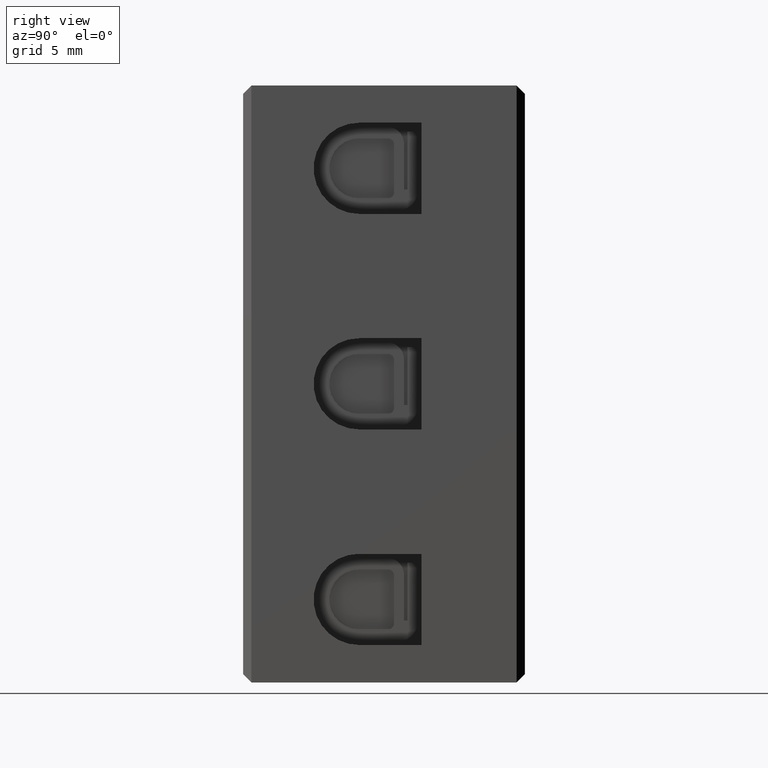
[diagram: clean part render]
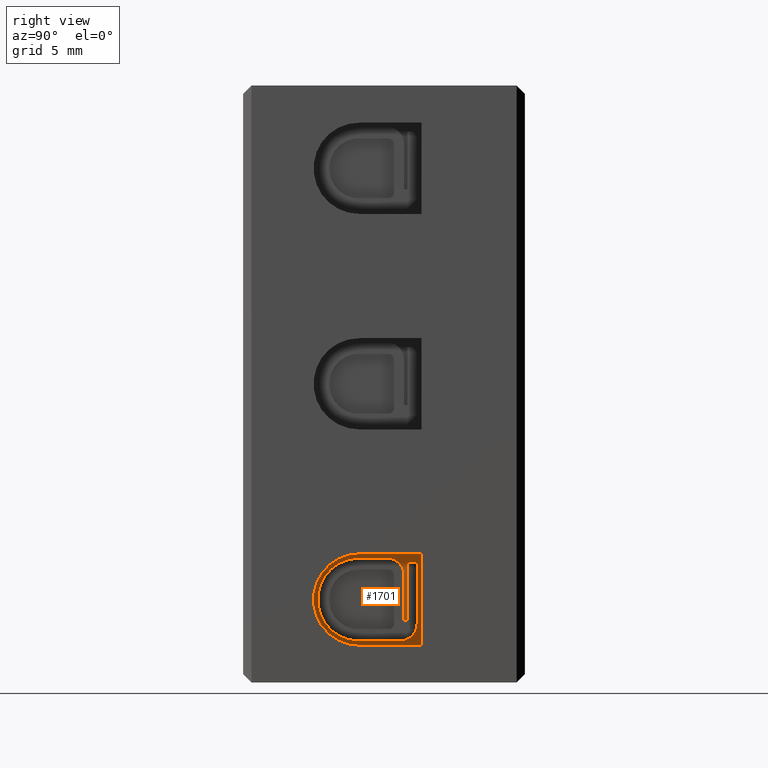
[diagram: same view with one face highlighted and labeled with its STEP entity id]
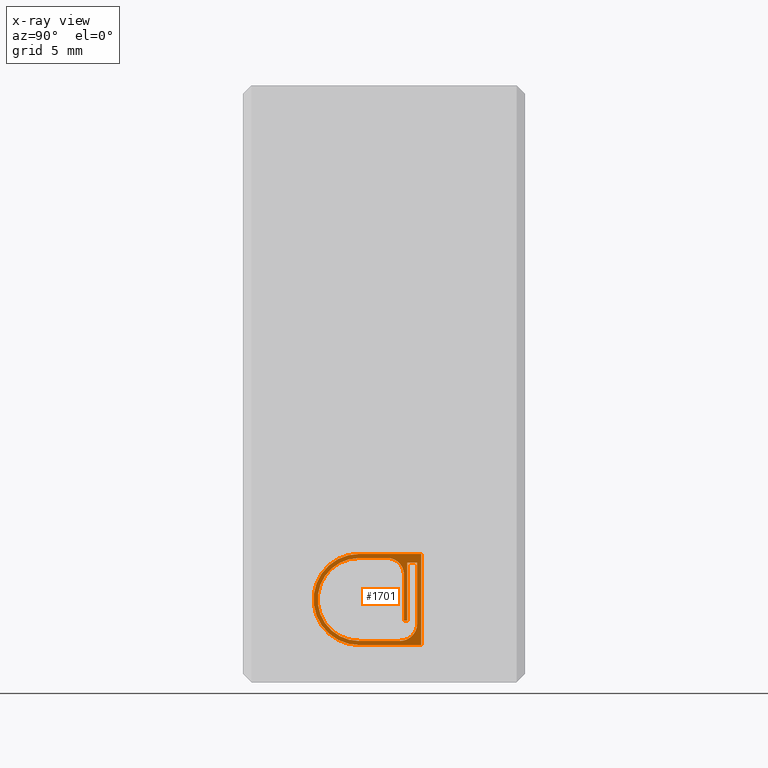
[diagram: x-ray of the same camera — body ghosted, the highlighted face saturated]
A machine part, right view. The second image highlights one B-rep face of the part: STEP entity #1701.
The next image is the same camera in x-ray: the body ghosted, the highlighted face saturated — about 0% of this face is hidden behind the body in this view.
In plain terms, the highlighted planar face has unit normal (1, -0, 0).
Its self-contained STEP definition (entity closure, byte-faithful):
#294 = LINE ( 'NONE', #297, #5585 ) ;
#297 = CARTESIAN_POINT ( 'NONE',  ( 6493.007784387873500, 6.999999999999998200, -33.75345117182175900 ) ) ;
#299 = LINE ( 'NONE', #320, #5584 ) ;
#300 = DIRECTION ( 'NONE',  ( 1.000000000000000000, -0.0000000000000000000, 0.0000000000000000000 ) ) ;
#308 = CARTESIAN_POINT ( 'NONE',  ( 6493.007784387873500, 9.449999999999784400, -32.45342649165758100 ) ) ;
#309 = DIRECTION ( 'NONE',  ( 0.0000000000000000000, 0.0000000000000000000, -1.000000000000000000 ) ) ;
#312 = DIRECTION ( 'NONE',  ( 1.095841156870758400E-027, 1.000000000000000000, 1.850530133063209700E-015 ) ) ;
#320 = CARTESIAN_POINT ( 'NONE',  ( 6493.007784387873500, 7.000000000000000000, -28.25280909086431400 ) ) ;
#324 = DIRECTION ( 'NONE',  ( -5.479205784353794500E-028, -1.000000000000000000, -9.252650665316052400E-016 ) ) ;
#351 = LINE ( 'NONE', #362, #5643 ) ;
#352 = DIRECTION ( 'NONE',  ( 0.0000000000000000000, 0.0000000000000000000, 1.000000000000000000 ) ) ;
#358 = CARTESIAN_POINT ( 'NONE',  ( 6493.007784387873500, 9.899999999999909800, -49.58692875665487800 ) ) ;
#361 = LINE ( 'NONE', #358, #5619 ) ;
#362 = CARTESIAN_POINT ( 'NONE',  ( 6493.007784387873500, 10.49999999999990900, -49.58692875665487800 ) ) ;
#366 = DIRECTION ( 'NONE',  ( 0.0000000000000000000, 0.0000000000000000000, -1.000000000000000000 ) ) ;
#372 = LINE ( 'NONE', #378, #5652 ) ;
#374 = CARTESIAN_POINT ( 'NONE',  ( 6493.007784387873500, 10.74967895952128000, -33.75345117183628900 ) ) ;
#378 = CARTESIAN_POINT ( 'NONE',  ( 6493.007784387873500, 11.47889287136609600, -32.27842649165692300 ) ) ;
#380 = DIRECTION ( 'NONE',  ( 0.0000000000000000000, -1.000000000000000000, -9.796085511400135400E-014 ) ) ;
#381 = DIRECTION ( 'NONE',  ( 0.0000000000000000000, -0.0000000000000000000, 1.000000000000000000 ) ) ;
#386 = LINE ( 'NONE', #374, #5664 ) ;
#388 = CARTESIAN_POINT ( 'NONE',  ( 6493.007784387873500, 11.47889287136403000, -28.50342649165640200 ) ) ;
#390 = DIRECTION ( 'NONE',  ( 0.0000000000000000000, 0.0000000000000000000, -1.000000000000000000 ) ) ;
#396 = DIRECTION ( 'NONE',  ( 0.0000000000000000000, -1.000000000000000000, 0.0000000000000000000 ) ) ;
#402 = CARTESIAN_POINT ( 'NONE',  ( 6493.007784387873500, 8.699999999999874900, -29.50342649165667200 ) ) ;
#409 = LINE ( 'NONE', #388, #5644 ) ;
#410 = DIRECTION ( 'NONE',  ( 1.000000000000000000, -0.0000000000000000000, 0.0000000000000000000 ) ) ;
#417 = LINE ( 'NONE', #428, #5640 ) ;
#418 = CARTESIAN_POINT ( 'NONE',  ( 6493.007784387873500, 7.000000000000168800, -31.00342649165741400 ) ) ;
#426 = DIRECTION ( 'NONE',  ( 0.0000000000000000000, 0.0000000000000000000, -1.000000000000000000 ) ) ;
#428 = CARTESIAN_POINT ( 'NONE',  ( 6493.007784387873500, 11.47889287136609600, -28.77842649165691900 ) ) ;
#432 = DIRECTION ( 'NONE',  ( 1.000000000000000000, -0.0000000000000000000, 0.0000000000000000000 ) ) ;
#437 = DIRECTION ( 'NONE',  ( 0.0000000000000000000, -1.000000000000000000, 0.0000000000000000000 ) ) ;
#465 = LINE ( 'NONE', #485, #5648 ) ;
#473 = DIRECTION ( 'NONE',  ( 0.0000000000000000000, 0.0000000000000000000, 1.000000000000000000 ) ) ;
#482 = DIRECTION ( 'NONE',  ( 1.000000000000000000, -0.0000000000000000000, -5.921768780153806200E-013 ) ) ;
#485 = CARTESIAN_POINT ( 'NONE',  ( 6493.007784387873500, 9.699999999999874900, -49.58692875665487800 ) ) ;
#486 = DIRECTION ( 'NONE',  ( 6.458725411528886600E-013, 0.0000000000000000000, 1.000000000000000000 ) ) ;
#496 = CARTESIAN_POINT ( 'NONE',  ( 6493.007784387871700, 6.999999999999999100, -31.00313013134303500 ) ) ;
#1207 = EDGE_CURVE ( 'NONE', #6653, #6641, #5508, .T. ) ;
#1265 = EDGE_CURVE ( 'NONE', #6671, #6662, #299, .T. ) ;
#1267 = EDGE_CURVE ( 'NONE', #6635, #2371, #294, .T. ) ;
#1270 = EDGE_CURVE ( 'NONE', #6641, #6648, #5570, .T. ) ;
#1277 = EDGE_CURVE ( 'NONE', #6648, #6652, #351, .T. ) ;
#1283 = EDGE_CURVE ( 'NONE', #6675, #6645, #361, .T. ) ;
#1294 = EDGE_CURVE ( 'NONE', #6645, #6681, #372, .T. ) ;
#1295 = EDGE_CURVE ( 'NONE', #2371, #6671, #386, .T. ) ;
#1296 = EDGE_CURVE ( 'NONE', #6659, #6678, #5635, .T. ) ;
#1297 = EDGE_CURVE ( 'NONE', #6678, #6683, #409, .T. ) ;
#1312 = EDGE_CURVE ( 'NONE', #6683, #6653, #5618, .T. ) ;
#1314 = EDGE_CURVE ( 'NONE', #6652, #6675, #417, .T. ) ;
#1317 = EDGE_CURVE ( 'NONE', #6681, #6659, #465, .T. ) ;
#1320 = EDGE_CURVE ( 'NONE', #6662, #6635, #5675, .T. ) ;
#1701 = ADVANCED_FACE ( 'NONE', ( #3786, #3840 ), #3815, .T. ) ;
#2371 = VERTEX_POINT ( 'NONE', #8190 ) ;
#2570 = EDGE_LOOP ( 'NONE', ( #2883, #2889, #2866, #2872 ) ) ;
#2649 = EDGE_LOOP ( 'NONE', ( #2885, #2911, #2905, #2865, #2899, #2886, #2918, #2862, #2903, #2897 ) ) ;
#2862 = ORIENTED_EDGE ( 'NONE', *, *, #1294, .F. ) ;
#2865 = ORIENTED_EDGE ( 'NONE', *, *, #1312, .F. ) ;
#2866 = ORIENTED_EDGE ( 'NONE', *, *, #1295, .T. ) ;
#2872 = ORIENTED_EDGE ( 'NONE', *, *, #1265, .T. ) ;
#2883 = ORIENTED_EDGE ( 'NONE', *, *, #1320, .T. ) ;
#2885 = ORIENTED_EDGE ( 'NONE', *, *, #1277, .F. ) ;
#2886 = ORIENTED_EDGE ( 'NONE', *, *, #1296, .F. ) ;
#2889 = ORIENTED_EDGE ( 'NONE', *, *, #1267, .T. ) ;
#2897 = ORIENTED_EDGE ( 'NONE', *, *, #1314, .F. ) ;
#2899 = ORIENTED_EDGE ( 'NONE', *, *, #1297, .F. ) ;
#2903 = ORIENTED_EDGE ( 'NONE', *, *, #1283, .F. ) ;
#2905 = ORIENTED_EDGE ( 'NONE', *, *, #1207, .F. ) ;
#2911 = ORIENTED_EDGE ( 'NONE', *, *, #1270, .F. ) ;
#2918 = ORIENTED_EDGE ( 'NONE', *, *, #1317, .F. ) ;
#3786 = FACE_BOUND ( 'NONE', #2649, .T. ) ;
#3788 = DIRECTION ( 'NONE',  ( 0.0000000000000000000, 0.0000000000000000000, -1.000000000000000000 ) ) ;
#3807 = CARTESIAN_POINT ( 'NONE',  ( 6493.007784387873500, 11.47889287136609600, -49.58692875665487800 ) ) ;
#3815 = PLANE ( 'NONE',  #4326 ) ;
#3839 = DIRECTION ( 'NONE',  ( 1.000000000000000000, -0.0000000000000000000, 0.0000000000000000000 ) ) ;
#3840 = FACE_OUTER_BOUND ( 'NONE', #2570, .T. ) ;
#4326 = AXIS2_PLACEMENT_3D ( 'NONE', #3807, #3839, #3788 ) ;
#5485 = CARTESIAN_POINT ( 'NONE',  ( 6493.007784387873500, 11.47889287136318100, -33.50342649165734300 ) ) ;
#5508 = LINE ( 'NONE', #5485, #6226 ) ;
#5512 = DIRECTION ( 'NONE',  ( 0.0000000000000000000, 1.000000000000000000, 1.812609019796458000E-013 ) ) ;
#5570 = CIRCLE ( 'NONE', #5574, 1.050000000000127300 ) ;
#5574 = AXIS2_PLACEMENT_3D ( 'NONE', #308, #300, #309 ) ;
#5584 = VECTOR ( 'NONE', #324, 1000.000000000000000 ) ;
#5585 = VECTOR ( 'NONE', #312, 1000.000000000000000 ) ;
#5617 = AXIS2_PLACEMENT_3D ( 'NONE', #402, #410, #390 ) ;
#5618 = CIRCLE ( 'NONE', #5637, 2.500000000000658100 ) ;
#5619 = VECTOR ( 'NONE', #366, 1000.000000000000000 ) ;
#5635 = CIRCLE ( 'NONE', #5617, 1.000000000000000900 ) ;
#5637 = AXIS2_PLACEMENT_3D ( 'NONE', #418, #432, #426 ) ;
#5640 = VECTOR ( 'NONE', #437, 1000.000000000000000 ) ;
#5643 = VECTOR ( 'NONE', #352, 1000.000000000000000 ) ;
#5644 = VECTOR ( 'NONE', #380, 1000.000000000000000 ) ;
#5648 = VECTOR ( 'NONE', #473, 1000.000000000000000 ) ;
#5652 = VECTOR ( 'NONE', #396, 1000.000000000000000 ) ;
#5664 = VECTOR ( 'NONE', #381, 1000.000000000000000 ) ;
#5675 = CIRCLE ( 'NONE', #5694, 2.750321040478724400 ) ;
#5694 = AXIS2_PLACEMENT_3D ( 'NONE', #496, #482, #486 ) ;
#6226 = VECTOR ( 'NONE', #5512, 1000.000000000000000 ) ;
#6635 = VERTEX_POINT ( 'NONE', #7294 ) ;
#6641 = VERTEX_POINT ( 'NONE', #7302 ) ;
#6645 = VERTEX_POINT ( 'NONE', #7275 ) ;
#6648 = VERTEX_POINT ( 'NONE', #7307 ) ;
#6652 = VERTEX_POINT ( 'NONE', #7260 ) ;
#6653 = VERTEX_POINT ( 'NONE', #7277 ) ;
#6659 = VERTEX_POINT ( 'NONE', #7343 ) ;
#6662 = VERTEX_POINT ( 'NONE', #7334 ) ;
#6671 = VERTEX_POINT ( 'NONE', #7319 ) ;
#6675 = VERTEX_POINT ( 'NONE', #7345 ) ;
#6678 = VERTEX_POINT ( 'NONE', #7337 ) ;
#6681 = VERTEX_POINT ( 'NONE', #7323 ) ;
#6683 = VERTEX_POINT ( 'NONE', #7329 ) ;
#7260 = CARTESIAN_POINT ( 'NONE',  ( 6493.007784387873500, 10.49999999999990900, -28.77842649165691900 ) ) ;
#7275 = CARTESIAN_POINT ( 'NONE',  ( 6493.007784387873500, 9.899999999999909800, -32.27842649165722100 ) ) ;
#7277 = CARTESIAN_POINT ( 'NONE',  ( 6493.007784387873500, 7.000000000000168800, -33.50342649165806800 ) ) ;
#7294 = CARTESIAN_POINT ( 'NONE',  ( 6493.007784387871700, 7.000000000000000900, -33.75345117182175900 ) ) ;
#7302 = CARTESIAN_POINT ( 'NONE',  ( 6493.007784387873500, 9.449999999999784400, -33.50342649165771300 ) ) ;
#7307 = CARTESIAN_POINT ( 'NONE',  ( 6493.007784387873500, 10.49999999999991100, -32.45342649165240800 ) ) ;
#7319 = CARTESIAN_POINT ( 'NONE',  ( 6493.007784387873500, 10.74967895952128000, -28.25280909086431100 ) ) ;
#7323 = CARTESIAN_POINT ( 'NONE',  ( 6493.007784387873500, 9.699999999999874900, -32.27842649165692300 ) ) ;
#7329 = CARTESIAN_POINT ( 'NONE',  ( 6493.007784387873500, 7.000000000000168800, -28.50342649165683900 ) ) ;
#7334 = CARTESIAN_POINT ( 'NONE',  ( 6493.007784387873500, 6.999999999999997300, -28.25280909086431400 ) ) ;
#7337 = CARTESIAN_POINT ( 'NONE',  ( 6493.007784387873500, 8.699999999999874900, -28.50342649165667200 ) ) ;
#7343 = CARTESIAN_POINT ( 'NONE',  ( 6493.007784387873500, 9.699999999999874900, -29.50342649164956700 ) ) ;
#7345 = CARTESIAN_POINT ( 'NONE',  ( 6493.007784387873500, 9.899999999999909800, -28.77842649165691900 ) ) ;
#8190 = CARTESIAN_POINT ( 'NONE',  ( 6493.007784387873500, 10.74967895952128000, -33.75345117182249800 ) ) ;